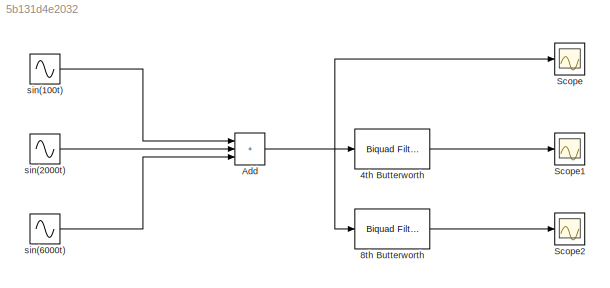
MODEL slx_5b131d4e2032
KIND model
CONFIG AbsTol = auto
CONFIG EnableMultiTasking = off
CONFIG FixedStep = auto
CONFIG MaxStep = auto
CONFIG MinStep = auto
CONFIG RelTol = 1e-3
CONFIG SampleTimeConstraint = Unconstrained
CONFIG Solver = VariableStepAuto
CONFIG SolverName = VariableStepAuto
CONFIG StartTime = 0.0
CONFIG StopTime = 10.0
BLOCK [Reference] 4th Butterworth  REF=dsparch4/Biquad Filter
  Ports = [1, 1]
  SourceBlock = dsparch4/Biquad Filter
  SourceProductBaseCode = DS
  SourceType = Biquad Filter
  Tag = BlockMethodSubSystem
  UserDataPersistent = on
BLOCK [Reference] 8th Butterworth  REF=dsparch4/Biquad Filter
  Ports = [1, 1]
  SourceBlock = dsparch4/Biquad Filter
  SourceProductBaseCode = DS
  SourceType = Biquad Filter
  Tag = BlockMethodSubSystem
  UserDataPersistent = on
BLOCK [Sum] Add
  IconShape = rectangular
  Inputs = +++
  Ports = [3, 1]
BLOCK [Scope] Scope
  Floating = off
  NumInputPorts = 1
  Ports = [1]
  ScopeSpecificationString = Simulink.scopes.TimeScopeBlockCfg('CurrentConfiguration', extmgr.ConfigurationSet(extmgr.Configuration('Core','General UI',true),extmgr.Configuration('Core','Source UI',true),extmgr.Configuration('Sources','WiredSimulink',true),extmgr.Configuration('Visuals','Time Domain',true,'SerializedDisplays',{struct('MinYLimReal','-2.49787','MaxYLimReal','1.13438','YLabelReal','','MinYLimMag','0.00000','MaxY...<+1667ch>
BLOCK [Scope] Scope1
  Floating = off
  NumInputPorts = 1
  Ports = [1]
  ScopeSpecificationString = Simulink.scopes.TimeScopeBlockCfg('CurrentConfiguration', extmgr.ConfigurationSet(extmgr.Configuration('Core','General UI',true),extmgr.Configuration('Core','Source UI',true),extmgr.Configuration('Sources','WiredSimulink',true,'DataLoggingVariableName','ScopeData1'),extmgr.Configuration('Visuals','Time Domain',true,'SerializedDisplays',{struct('MinYLimReal','-0.01669','MaxYLimReal','0.01645','YLab...<+1449ch>
BLOCK [Scope] Scope2
  Floating = off
  NumInputPorts = 1
  Ports = [1]
  ScopeSpecificationString = Simulink.scopes.TimeScopeBlockCfg('CurrentConfiguration', extmgr.ConfigurationSet(extmgr.Configuration('Core','General UI',true),extmgr.Configuration('Core','Source UI',true),extmgr.Configuration('Sources','WiredSimulink',true,'DataLoggingVariableName','ScopeData2'),extmgr.Configuration('Visuals','Time Domain',true,'SerializedDisplays',{struct('MinYLimReal','-0.01354','MaxYLimReal','0.01355','YLab...<+1449ch>
BLOCK [Sin] sin(100t)
  Frequency = 100
  Ports = [0, 1]
  SampleTime = 1/12000
BLOCK [Sin] sin(2000t)
  Frequency = 2000
  Ports = [0, 1]
  SampleTime = 1/12000
BLOCK [Sin] sin(6000t)
  Frequency = 6000
  Ports = [0, 1]
  SampleTime = 1/12000
LINE 4th Butterworth:1 -> Scope1:1
LINE 8th Butterworth:1 -> Scope2:1
NET Add:1 -> 4th Butterworth:1, 8th Butterworth:1, Scope:1
LINE sin(100t):1 -> Add:1
LINE sin(2000t):1 -> Add:2
LINE sin(6000t):1 -> Add:3
note: NET lines group one-source signal fan-out (src -> all destinations, sorted); 1:1 wires keep LINE
